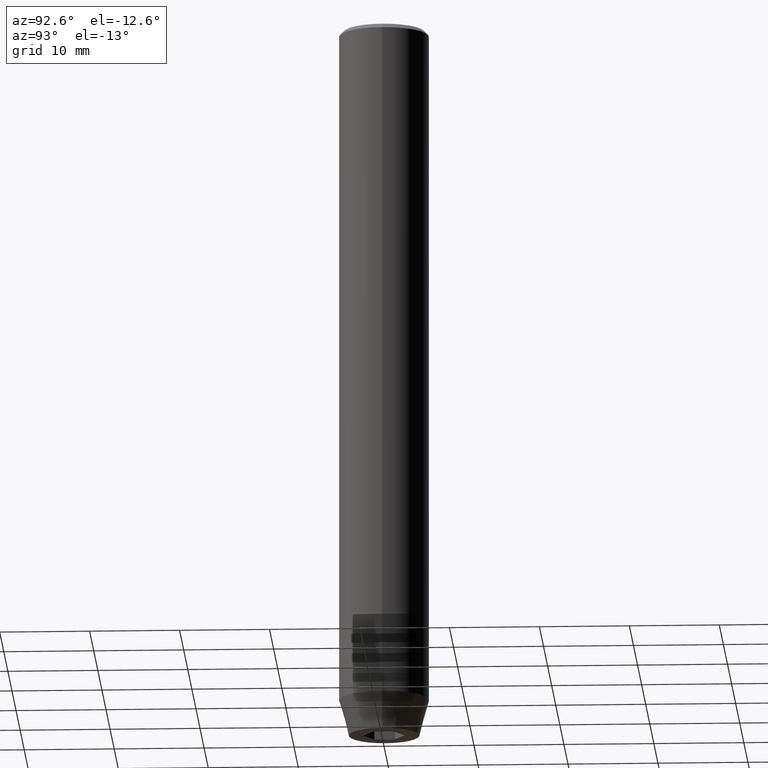
[diagram: clean part render]
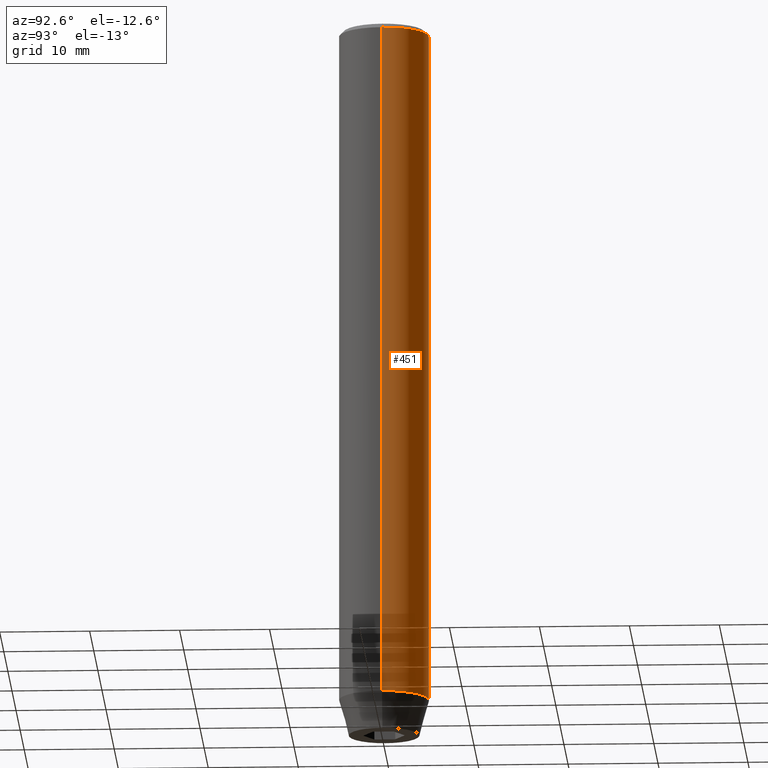
[diagram: same view with one face highlighted and labeled with its STEP entity id]
A machine part, auxiliary view. The second image highlights one B-rep face of the part: STEP entity #451.
In plain terms, the highlighted cylindrical surface (partial cylindrical patch) has radius 5 mm, axis along (-0, -0, 1).
Its self-contained STEP definition (entity closure, byte-faithful):
#5 = CARTESIAN_POINT ( 'NONE',  ( 0.000000000000000000, 0.000000000000000000, 0.000000000000000000 ) ) ;
#11 = FACE_OUTER_BOUND ( 'NONE', #587, .T. ) ;
#19 = ORIENTED_EDGE ( 'NONE', *, *, #342, .T. ) ;
#26 = CARTESIAN_POINT ( 'NONE',  ( 5.000000000000000000, 0.000000000000000000, 0.000000000000000000 ) ) ;
#31 = LINE ( 'NONE', #26, #56 ) ;
#52 = VERTEX_POINT ( 'NONE', #464 ) ;
#56 = VECTOR ( 'NONE', #262, 1000.000000000000000 ) ;
#57 = LINE ( 'NONE', #365, #117 ) ;
#58 = CARTESIAN_POINT ( 'NONE',  ( 5.000000000000000000, 0.000000000000000000, -0.5000000000000065503 ) ) ;
#78 = DIRECTION ( 'NONE',  ( 1.000000000000000000, 0.000000000000000000, 0.000000000000000000 ) ) ;
#101 = ORIENTED_EDGE ( 'NONE', *, *, #215, .T. ) ;
#117 = VECTOR ( 'NONE', #234, 1000.000000000000000 ) ;
#153 = CARTESIAN_POINT ( 'NONE',  ( 0.000000000000000000, 0.000000000000000000, -76.00000000000001421 ) ) ;
#161 = CIRCLE ( 'NONE', #534, 5.000000000000000000 ) ;
#168 = VERTEX_POINT ( 'NONE', #58 ) ;
#188 = DIRECTION ( 'NONE',  ( 1.000000000000000000, 0.000000000000000000, 0.000000000000000000 ) ) ;
#215 = EDGE_CURVE ( 'NONE', #501, #52, #539, .T. ) ;
#234 = DIRECTION ( 'NONE',  ( -0.000000000000000000, -0.000000000000000000, 1.000000000000000000 ) ) ;
#249 = DIRECTION ( 'NONE',  ( 1.000000000000000000, 0.000000000000000000, 0.000000000000000000 ) ) ;
#261 = DIRECTION ( 'NONE',  ( 0.000000000000000000, 0.000000000000000000, -1.000000000000000000 ) ) ;
#262 = DIRECTION ( 'NONE',  ( -0.000000000000000000, -0.000000000000000000, 1.000000000000000000 ) ) ;
#284 = CYLINDRICAL_SURFACE ( 'NONE', #291, 5.000000000000000000 ) ;
#291 = AXIS2_PLACEMENT_3D ( 'NONE', #5, #424, #188 ) ;
#331 = EDGE_CURVE ( 'NONE', #501, #168, #31, .T. ) ;
#342 = EDGE_CURVE ( 'NONE', #386, #168, #161, .T. ) ;
#365 = CARTESIAN_POINT ( 'NONE',  ( -5.000000000000000000, 6.123233995736766282E-16, 0.000000000000000000 ) ) ;
#376 = DIRECTION ( 'NONE',  ( -0.000000000000000000, -0.000000000000000000, 1.000000000000000000 ) ) ;
#386 = VERTEX_POINT ( 'NONE', #532 ) ;
#424 = DIRECTION ( 'NONE',  ( -0.000000000000000000, -0.000000000000000000, 1.000000000000000000 ) ) ;
#451 = ADVANCED_FACE ( 'NONE', ( #11 ), #284, .T. ) ;
#454 = AXIS2_PLACEMENT_3D ( 'NONE', #153, #376, #249 ) ;
#455 = CARTESIAN_POINT ( 'NONE',  ( 5.000000000000000000, 0.000000000000000000, -76.00000000000001421 ) ) ;
#464 = CARTESIAN_POINT ( 'NONE',  ( -5.000000000000000000, 6.123233995736766282E-16, -76.00000000000001421 ) ) ;
#480 = ORIENTED_EDGE ( 'NONE', *, *, #331, .F. ) ;
#501 = VERTEX_POINT ( 'NONE', #455 ) ;
#505 = ORIENTED_EDGE ( 'NONE', *, *, #543, .T. ) ;
#525 = CARTESIAN_POINT ( 'NONE',  ( 0.000000000000000000, 0.000000000000000000, -0.5000000000000065503 ) ) ;
#532 = CARTESIAN_POINT ( 'NONE',  ( -5.000000000000000000, 6.123233995736766282E-16, -0.5000000000000065503 ) ) ;
#534 = AXIS2_PLACEMENT_3D ( 'NONE', #525, #261, #78 ) ;
#539 = CIRCLE ( 'NONE', #454, 5.000000000000000000 ) ;
#543 = EDGE_CURVE ( 'NONE', #52, #386, #57, .T. ) ;
#587 = EDGE_LOOP ( 'NONE', ( #101, #505, #19, #480 ) ) ;